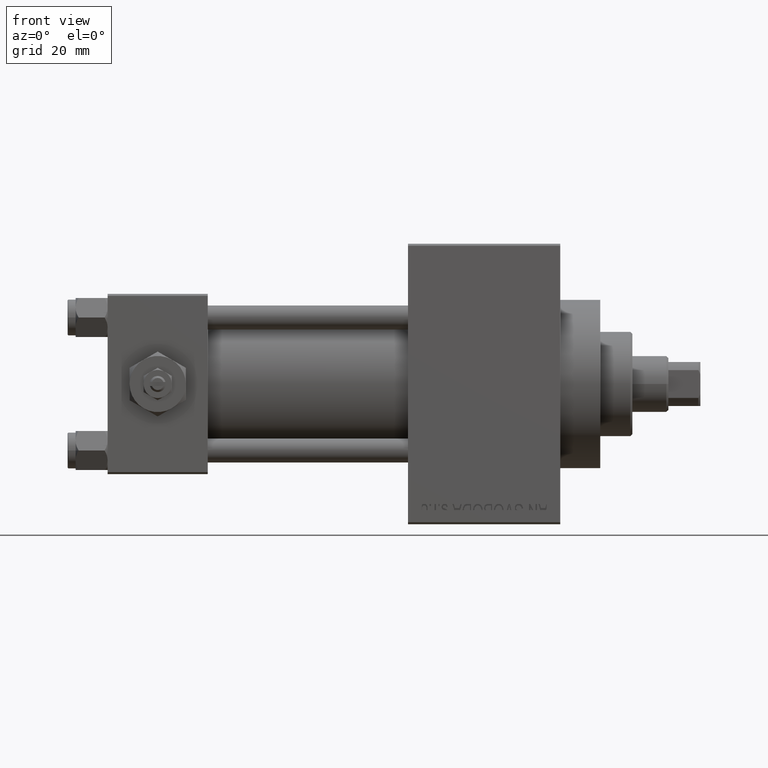
[diagram: clean part render]
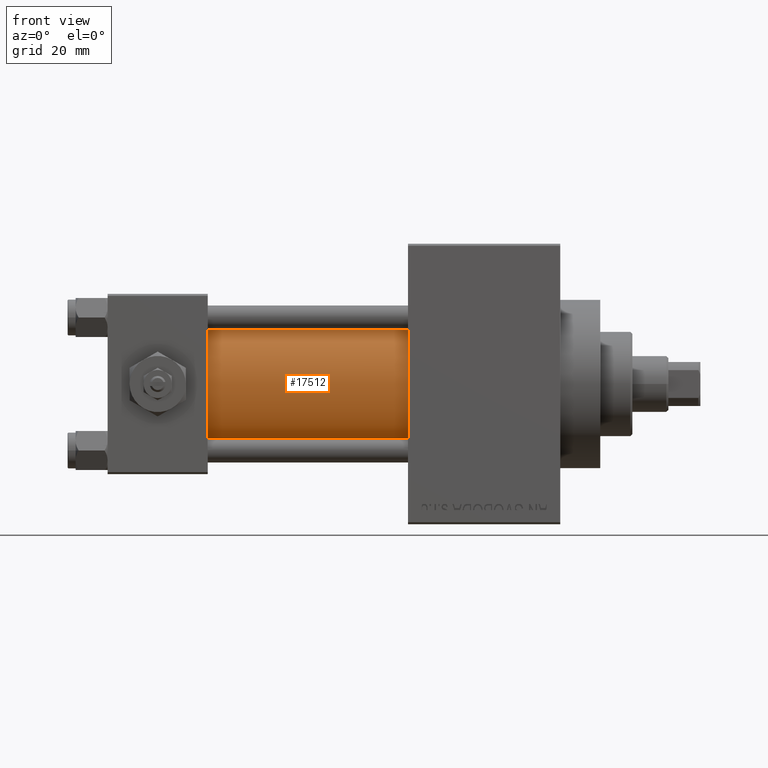
[diagram: same view with one face highlighted and labeled with its STEP entity id]
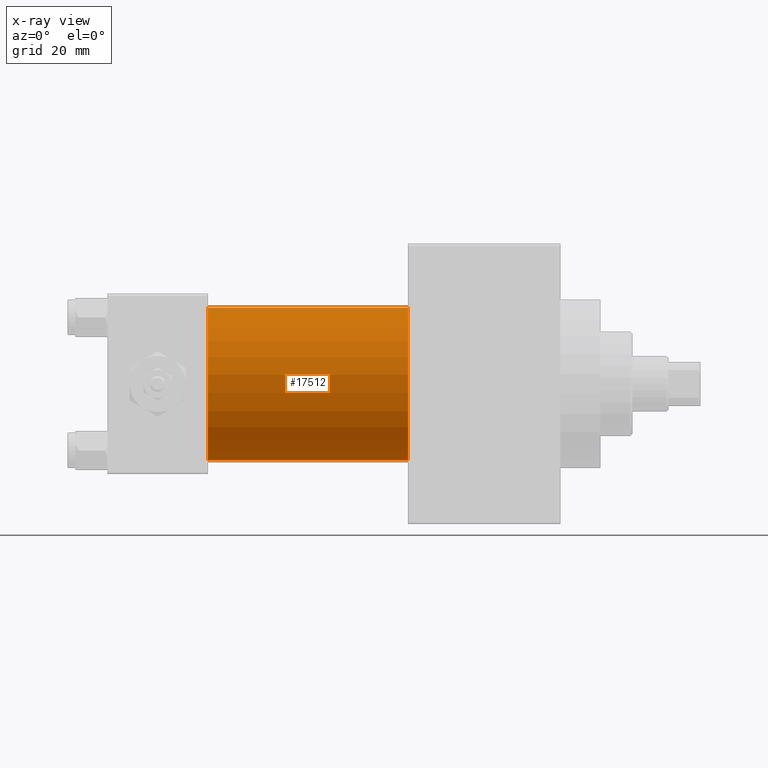
[diagram: x-ray of the same camera — body ghosted, the highlighted face saturated]
A machine part, front view. The second image highlights one B-rep face of the part: STEP entity #17512.
The next image is the same camera in x-ray: the body ghosted, the highlighted face saturated — about 0% of this face is hidden behind the body in this view.
In plain terms, the highlighted cylindrical surface (partial cylindrical patch) has radius 19 mm, axis along (-1, -0, -0).
Its self-contained STEP definition (entity closure, byte-faithful):
#1652 = CARTESIAN_POINT ( 'NONE',  ( 25.00000000000000000, -2.602085213965210642E-15, 19.00000000000000000 ) ) ;
#2953 = CARTESIAN_POINT ( 'NONE',  ( 75.00000000000001421, -2.752562955852396712E-16, -19.00000000000000000 ) ) ;
#5345 = CIRCLE ( 'NONE', #9286, 19.00000000000000000 ) ;
#5742 = DIRECTION ( 'NONE',  ( -1.000000000000000000, -0.000000000000000000, -0.000000000000000000 ) ) ;
#5916 = DIRECTION ( 'NONE',  ( 0.000000000000000000, 0.000000000000000000, -1.000000000000000000 ) ) ;
#7199 = DIRECTION ( 'NONE',  ( 0.000000000000000000, 0.000000000000000000, 1.000000000000000000 ) ) ;
#7432 = ORIENTED_EDGE ( 'NONE', *, *, #27577, .T. ) ;
#7738 = EDGE_CURVE ( 'NONE', #30516, #22898, #5345, .T. ) ;
#9197 = FACE_OUTER_BOUND ( 'NONE', #21670, .T. ) ;
#9286 = AXIS2_PLACEMENT_3D ( 'NONE', #43762, #47205, #5916 ) ;
#10277 = AXIS2_PLACEMENT_3D ( 'NONE', #16818, #5742, #32048 ) ;
#10829 = CARTESIAN_POINT ( 'NONE',  ( 75.00000000000001421, -2.602085213965210642E-15, 19.00000000000000000 ) ) ;
#13128 = EDGE_CURVE ( 'NONE', #22898, #31640, #39727, .T. ) ;
#13392 = CARTESIAN_POINT ( 'NONE',  ( 75.00000000000001421, -2.602085213965210642E-15, 19.00000000000000000 ) ) ;
#16818 = CARTESIAN_POINT ( 'NONE',  ( 75.00000000000001421, -2.602085213965210642E-15, 0.000000000000000000 ) ) ;
#17294 = CYLINDRICAL_SURFACE ( 'NONE', #10277, 19.00000000000000000 ) ;
#17512 = ADVANCED_FACE ( 'NONE', ( #9197 ), #17294, .T. ) ;
#18017 = VECTOR ( 'NONE', #31874, 1000.000000000000000 ) ;
#19172 = ORIENTED_EDGE ( 'NONE', *, *, #13128, .F. ) ;
#21670 = EDGE_LOOP ( 'NONE', ( #19172, #31478, #7432, #46044 ) ) ;
#22898 = VERTEX_POINT ( 'NONE', #2953 ) ;
#25255 = VERTEX_POINT ( 'NONE', #1652 ) ;
#27577 = EDGE_CURVE ( 'NONE', #30516, #25255, #44486, .T. ) ;
#30516 = VERTEX_POINT ( 'NONE', #13392 ) ;
#31478 = ORIENTED_EDGE ( 'NONE', *, *, #7738, .F. ) ;
#31640 = VERTEX_POINT ( 'NONE', #35281 ) ;
#31874 = DIRECTION ( 'NONE',  ( -1.000000000000000000, -0.000000000000000000, -0.000000000000000000 ) ) ;
#32048 = DIRECTION ( 'NONE',  ( 0.000000000000000000, 0.000000000000000000, 1.000000000000000000 ) ) ;
#33502 = CARTESIAN_POINT ( 'NONE',  ( 25.00000000000000000, -2.602085213965210642E-15, 0.000000000000000000 ) ) ;
#34592 = EDGE_CURVE ( 'NONE', #25255, #31640, #48384, .T. ) ;
#35281 = CARTESIAN_POINT ( 'NONE',  ( 25.00000000000000000, -2.752562955852396712E-16, -19.00000000000000000 ) ) ;
#37939 = VECTOR ( 'NONE', #48413, 1000.000000000000000 ) ;
#39727 = LINE ( 'NONE', #43649, #18017 ) ;
#41349 = DIRECTION ( 'NONE',  ( 1.000000000000000000, -0.000000000000000000, 0.000000000000000000 ) ) ;
#43649 = CARTESIAN_POINT ( 'NONE',  ( 75.00000000000001421, -2.752562955852396712E-16, -19.00000000000000000 ) ) ;
#43762 = CARTESIAN_POINT ( 'NONE',  ( 75.00000000000001421, -2.602085213965210642E-15, 0.000000000000000000 ) ) ;
#44486 = LINE ( 'NONE', #10829, #37939 ) ;
#46029 = AXIS2_PLACEMENT_3D ( 'NONE', #33502, #41349, #7199 ) ;
#46044 = ORIENTED_EDGE ( 'NONE', *, *, #34592, .T. ) ;
#47205 = DIRECTION ( 'NONE',  ( 1.000000000000000000, 0.000000000000000000, 0.000000000000000000 ) ) ;
#48384 = CIRCLE ( 'NONE', #46029, 19.00000000000000000 ) ;
#48413 = DIRECTION ( 'NONE',  ( -1.000000000000000000, -0.000000000000000000, -0.000000000000000000 ) ) ;